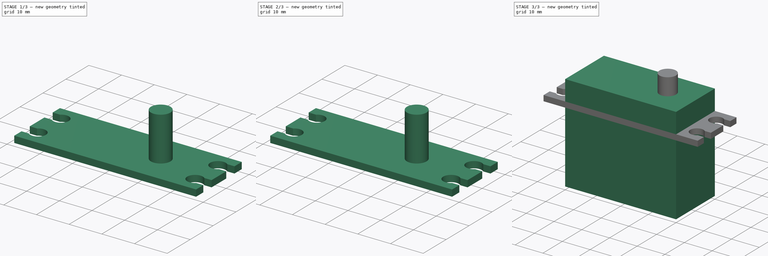
[diagram: build sequence overview — one tinted view per stage of 3, left to right]
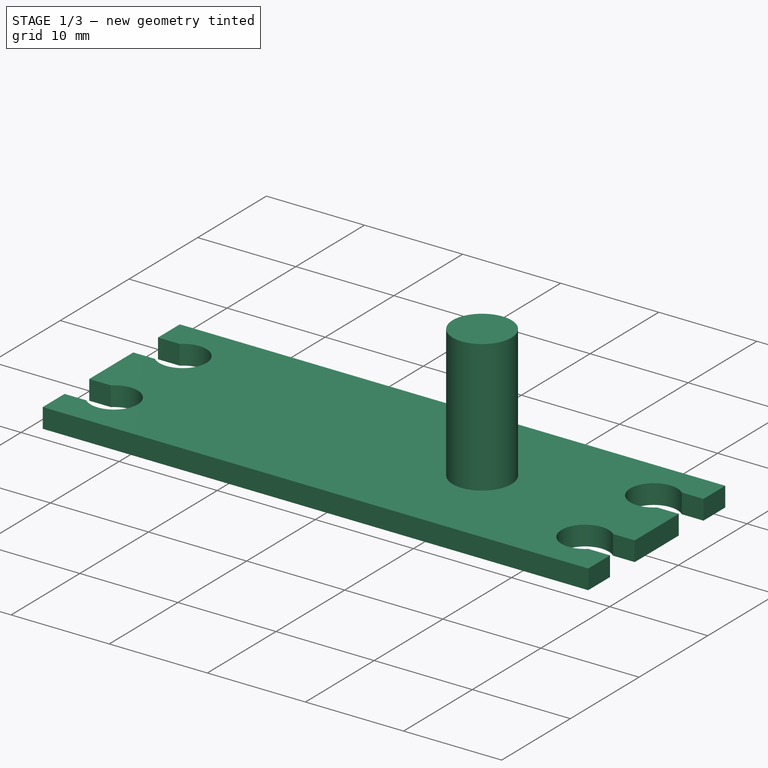
[diagram: stage 1 of 3 — iso view after this stage's code; geometry added in this stage tinted green]
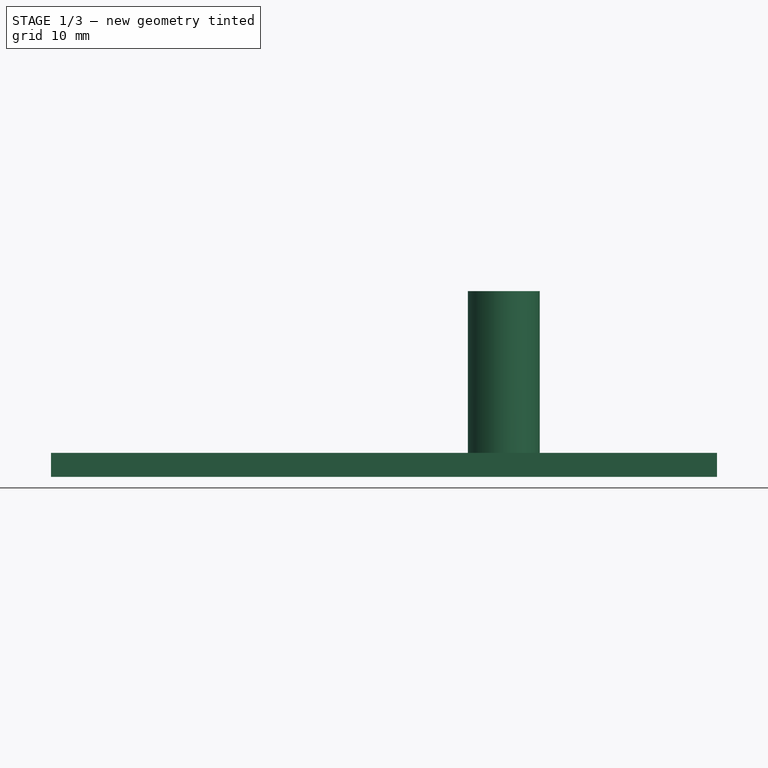
[diagram: stage 1 of 3 — front view after this stage's code; geometry added in this stage tinted green]
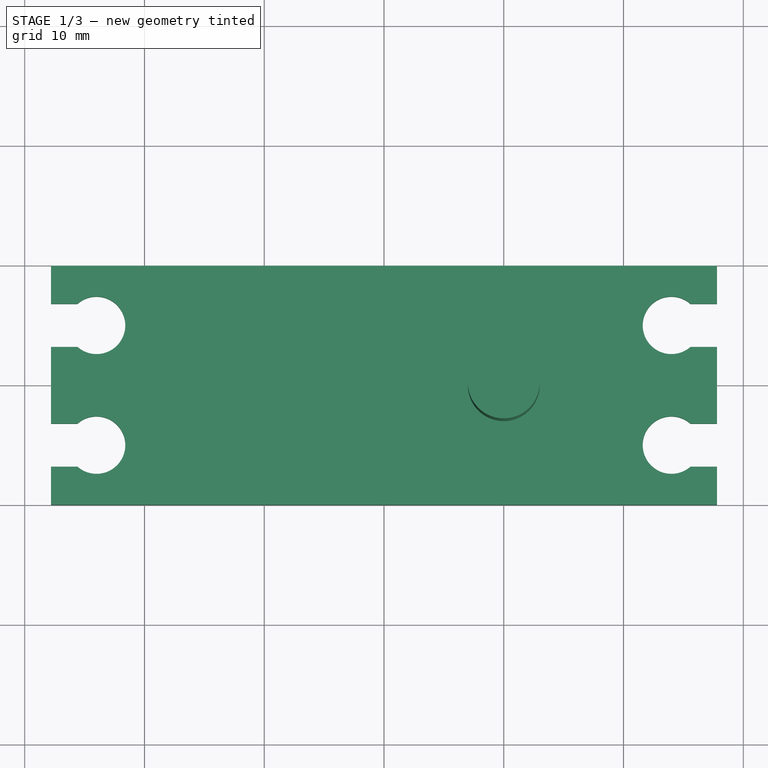
[diagram: stage 1 of 3 — top view after this stage's code; geometry added in this stage tinted green]
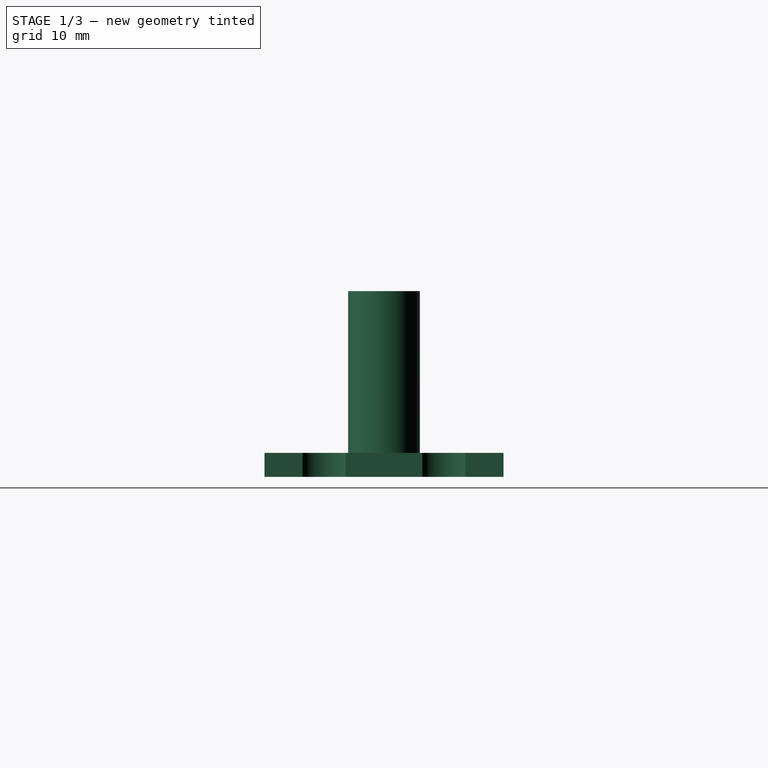
[diagram: stage 1 of 3 — right view after this stage's code; geometry added in this stage tinted green]
FCSTD DOCUMENT  (FreeCAD 0.14R3700 (Git))
Label: servo
License: CC-BY 3.0
LicenseURL: http://creativecommons.org/licenses/by/3.0/
objects: Sketcher::SketchObject×3, Part::Extrusion×3, Part::Fuse×2
note: 8 computed .brp shape members not serialized (recipe doc carries the construction recipe); baked Part::Feature solids carry a one-line shape summary decoded from their .brp

FEATURE [Part::Extrusion] Extrude002
  Base = -> Sketch
  Dir = (0,0,2)
  Solid = true
FEATURE [Sketcher::SketchObject] Sketch003
  sketch-geometry (1):
    g0: Circle CenterX=0 CenterY=0 CenterZ=0 NormalX=0 NormalY=0 NormalZ=1 Radius=3
  constraints (2):
    c: Coincident(g0,g-1)
    c: Radius(g0) = 3
FEATURE [Part::Extrusion] Extrude004
  Base = -> Sketch003
  Dir = (0,0,15.5)
  Solid = true
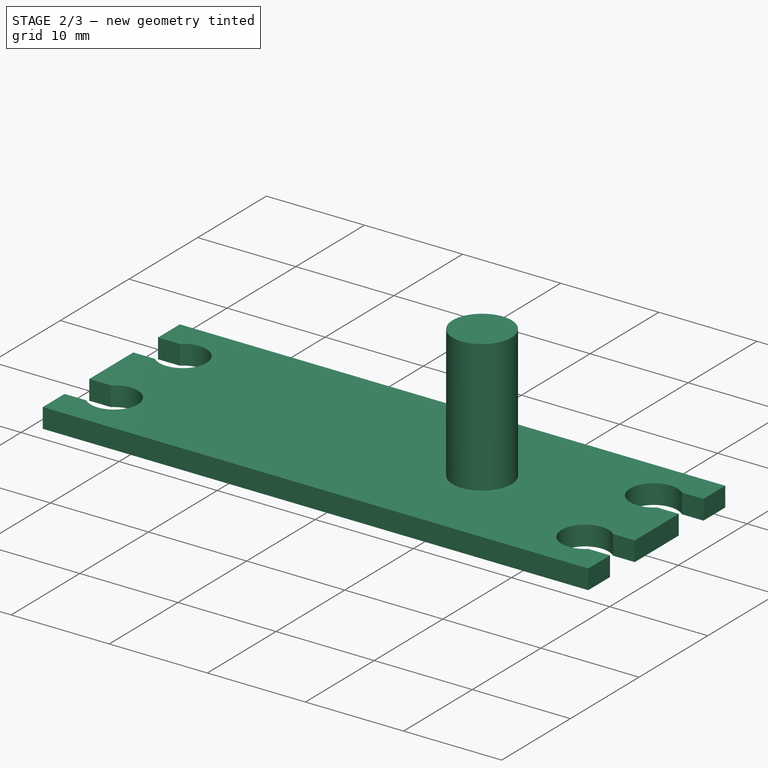
[diagram: stage 2 of 3 — iso view after this stage's code; geometry added in this stage tinted green]
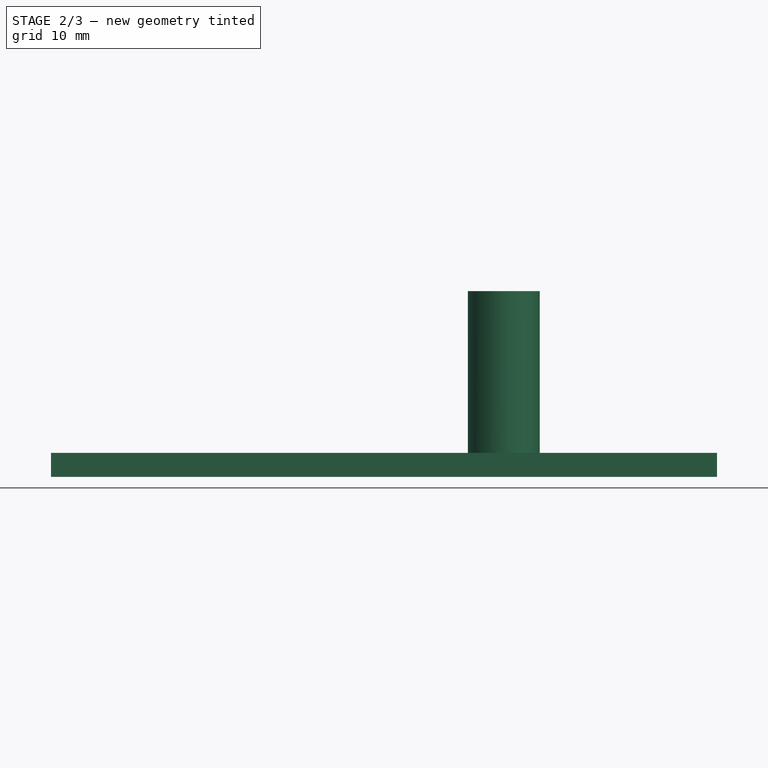
[diagram: stage 2 of 3 — front view after this stage's code; geometry added in this stage tinted green]
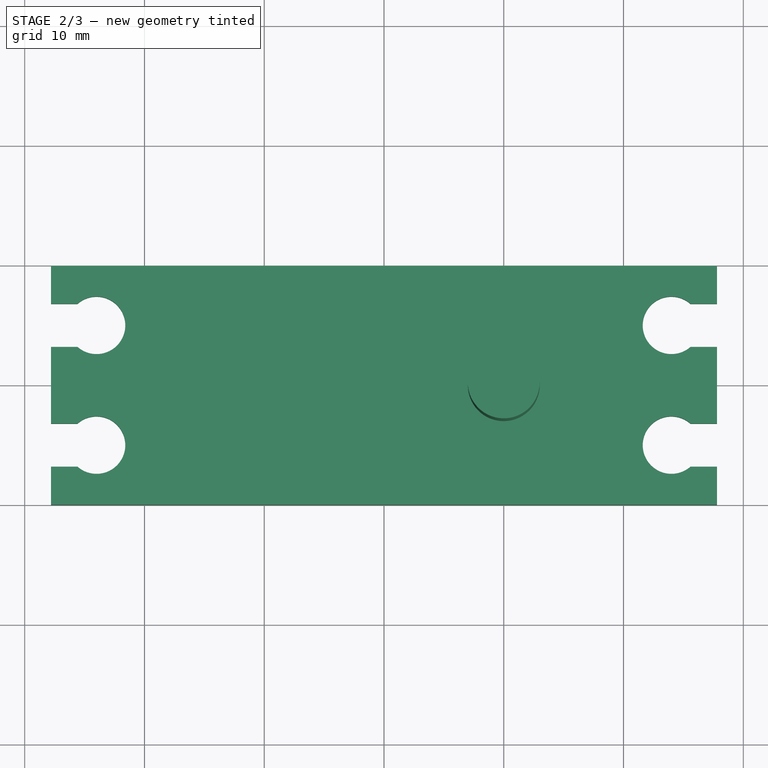
[diagram: stage 2 of 3 — top view after this stage's code; geometry added in this stage tinted green]
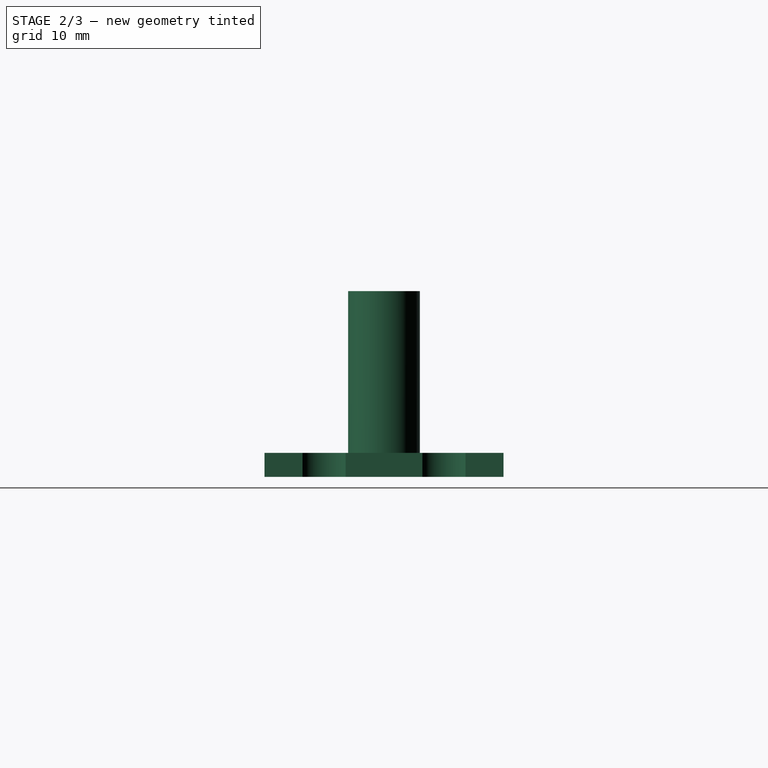
[diagram: stage 2 of 3 — right view after this stage's code; geometry added in this stage tinted green]
FEATURE [Part::Fuse] Fusion
  Base = -> Extrude002
  Tool = -> Extrude004
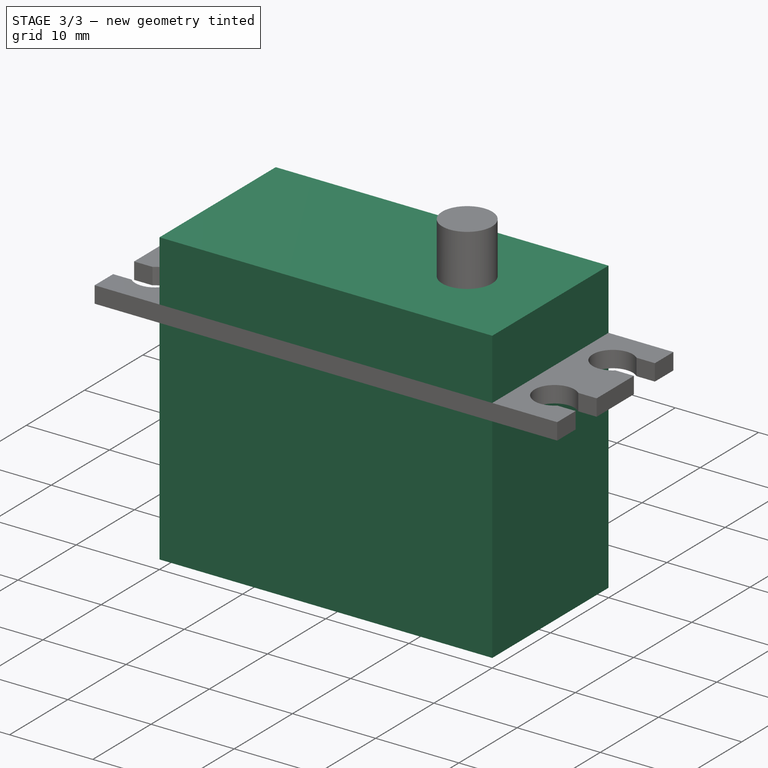
[diagram: stage 3 of 3 — iso view after this stage's code; geometry added in this stage tinted green]
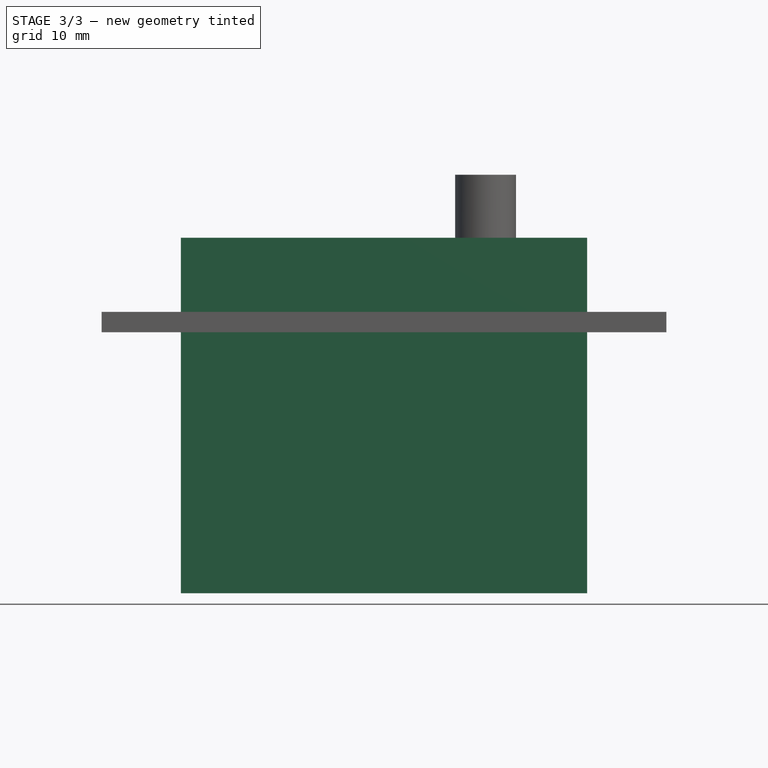
[diagram: stage 3 of 3 — front view after this stage's code; geometry added in this stage tinted green]
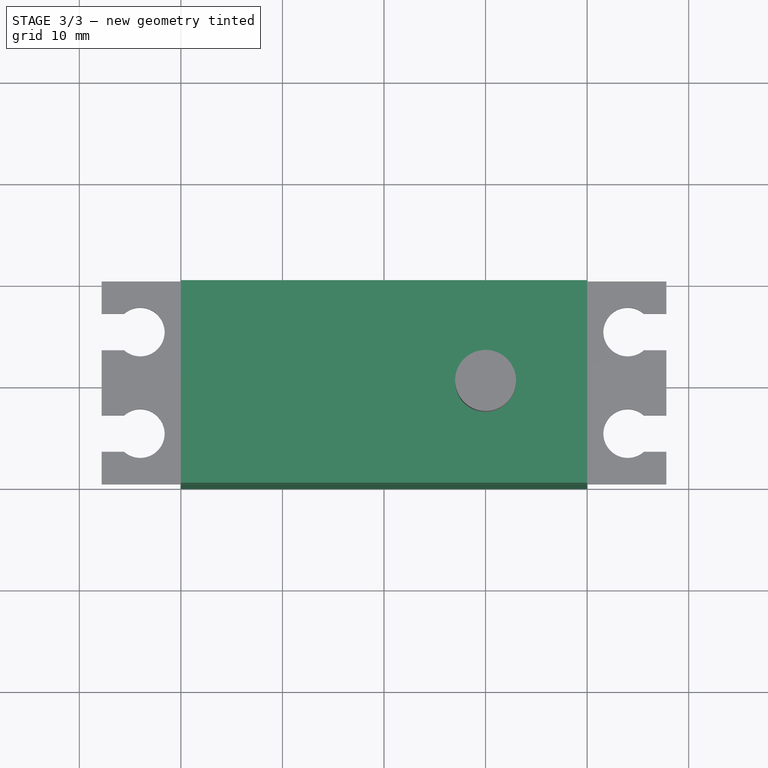
[diagram: stage 3 of 3 — top view after this stage's code; geometry added in this stage tinted green]
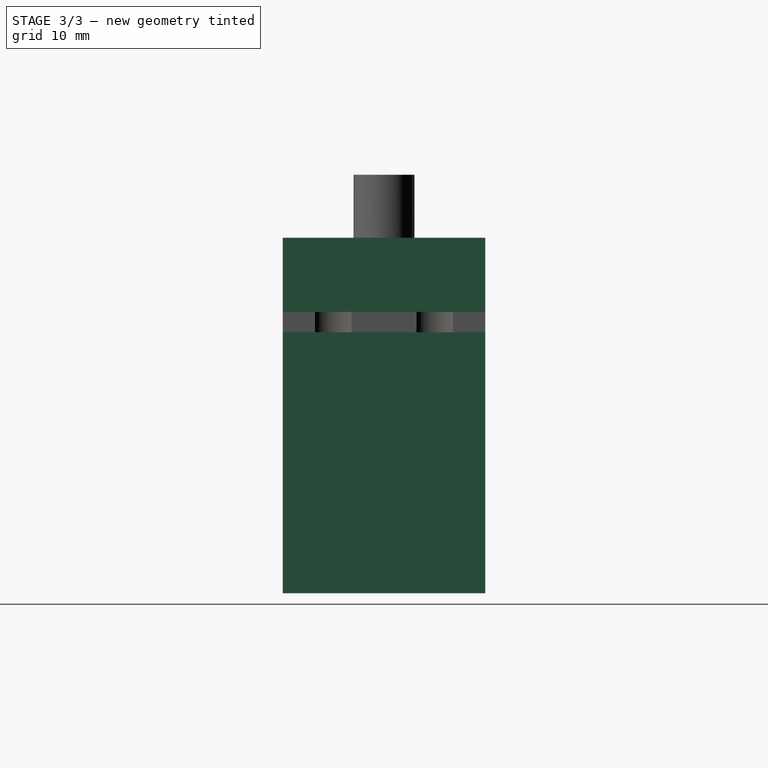
[diagram: stage 3 of 3 — right view after this stage's code; geometry added in this stage tinted green]
FEATURE [Sketcher::SketchObject] Sketch
  sketch-geometry (31):
    g0: LineSegment StartX=-37.8 StartY=9.975 StartZ=0 EndX=17.8 EndY=9.975 EndZ=0
    g1: LineSegment StartX=17.8 StartY=-9.975 StartZ=0 EndX=-37.8 EndY=-9.975 EndZ=0
    g2: LineSegment [constr] StartX=14 StartY=5 StartZ=0 EndX=14 EndY=-5 EndZ=0
    g3: LineSegment [constr] StartX=-34 StartY=-5 StartZ=0 EndX=-34 EndY=5 EndZ=0
    g4: LineSegment StartX=15.5875 StartY=-6.8 StartZ=0 EndX=17.8 EndY=-6.8 EndZ=0
    g5: ArcOfCircle CenterX=14 CenterY=-5 CenterZ=0 NormalX=0 NormalY=0 NormalZ=1 Radius=2.4 StartAngle=0.848062 EndAngle=5.43512
    g6: LineSegment StartX=15.5875 StartY=-3.2 StartZ=0 EndX=17.8 EndY=-3.2 EndZ=0
    g7: LineSegment [constr] StartX=-10 StartY=9.975 StartZ=0 EndX=-10 EndY=-9.975 EndZ=0
    g8: ArcOfCircle CenterX=-34 CenterY=-5 CenterZ=0 NormalX=0 NormalY=0 NormalZ=1 Radius=2.4 StartAngle=3.98965 EndAngle=8.57672
    g9: LineSegment StartX=17.8 StartY=-6.8 StartZ=0 EndX=17.8 EndY=-9.975 EndZ=0
    g10: ArcOfCircle CenterX=14 CenterY=5 CenterZ=0 NormalX=0 NormalY=0 NormalZ=1 Radius=2.4 StartAngle=0.848062 EndAngle=5.43512
    g11: LineSegment StartX=15.5875 StartY=3.2 StartZ=0 EndX=17.8 EndY=3.2 EndZ=0
    g12: LineSegment StartX=15.5875 StartY=6.8 StartZ=0 EndX=17.8 EndY=6.8 EndZ=0
    g13: LineSegment StartX=17.8 StartY=-3.2 StartZ=0 EndX=17.8 EndY=3.2 EndZ=0
    g14: LineSegment StartX=17.8 StartY=9.975 StartZ=0 EndX=17.8 EndY=6.8 EndZ=0
    g15: LineSegment [constr] StartX=17.8 StartY=-3.2 StartZ=0 EndX=17.8 EndY=-6.8 EndZ=0
    g16: LineSegment [constr] StartX=15.5875 StartY=-3.2 StartZ=0 EndX=15.5875 EndY=-6.8 EndZ=0
    g17: ArcOfCircle CenterX=-34 CenterY=5 CenterZ=0 NormalX=0 NormalY=0 NormalZ=1 Radius=2.4 StartAngle=3.98965 EndAngle=8.57672
    g18: LineSegment StartX=-37.8 StartY=9.975 StartZ=0 EndX=-37.8 EndY=6.8 EndZ=0
    g19: LineSegment StartX=-37.8 StartY=6.8 StartZ=0 EndX=-35.5875 EndY=6.8 EndZ=0
    g20: LineSegment StartX=-35.5875 StartY=3.2 StartZ=0 EndX=-37.8 EndY=3.2 EndZ=0
    g21: LineSegment StartX=-37.8 StartY=3.2 StartZ=0 EndX=-37.8 EndY=-3.2 EndZ=0
    g22: LineSegment StartX=-37.8 StartY=-3.2 StartZ=0 EndX=-35.5875 EndY=-3.2 EndZ=0
    g23: LineSegment StartX=-37.8 StartY=-9.975 StartZ=0 EndX=-37.8 EndY=-6.8 EndZ=0
    g24: LineSegment StartX=-37.8 StartY=-6.8 StartZ=0 EndX=-35.5875 EndY=-6.8 EndZ=0
    g25: LineSegment [constr] StartX=-37.8 StartY=-3.2 StartZ=0 EndX=-37.8 EndY=-6.8 EndZ=0
    g26: LineSegment [constr] StartX=-37.8 StartY=3.2 StartZ=0 EndX=-37.8 EndY=6.8 EndZ=0
    g27: LineSegment [constr] StartX=-31.6067 StartY=4.8208 StartZ=0 EndX=-31.6067 EndY=-4.8208 EndZ=0
    g28: LineSegment [constr] StartX=11.6 StartY=5.00188 StartZ=0 EndX=11.6 EndY=-5.00188 EndZ=0
    g29: LineSegment [constr] StartX=-30 StartY=9.975 StartZ=0 EndX=-30 EndY=-9.975 EndZ=0
    g30: LineSegment [constr] StartX=10 StartY=9.975 StartZ=0 EndX=10 EndY=-9.975 EndZ=0
  constraints (85):
    c: Horizontal(g0)
    c: Horizontal(g1)
    c: Vertical(g2)
    c: DistanceY(g2) = -10
    c: Distance(g0) = 55.6
    c: Symmetric(g1,g0,g-1)
    c: Vertical(g3)
    c: Horizontal(g4)
    c: Coincident(g5,g4)
    c: Coincident(g2,g5)
    c: Radius(g5) = 2.4
    c: Horizontal(g6)
    c: Coincident(g5,g6)
    c: DistanceY(g4,g5) = 3.6
    c: PointOnObject(g7,g0)
    c: PointOnObject(g7,g1)
    c: Vertical(g7)
    c: Symmetric(g1,g1,g7)
    c: Coincident(g3,g8)
    c: Coincident(g9,g4)
    c: Coincident(g9,g1)
    c: Coincident(g10,g2)
    c: Coincident(g11,g10)
    c: Horizontal(g11)
    c: Coincident(g12,g10)
    c: Horizontal(g12)
    c: Coincident(g13,g6)
    c: Coincident(g13,g11)
    c: Vertical(g13)
    c: Coincident(g14,g0)
    c: Coincident(g14,g12)
    c: Vertical(g14)
    c: Symmetric(g5,g10,g-1)
    c: Vertical(g9)
    c: Symmetric(g4,g10,g-1)
    c: Coincident(g15,g6)
    c: Coincident(g15,g4)
    c: Vertical(g15)
    c: Coincident(g16,g5)
    c: Coincident(g16,g4)
    c: Vertical(g16)
    c: Radius(g8) = 2.4
    c: Coincident(g17,g3)
    c: DistanceX(g3,g2) = 48
    c: Coincident(g0,g18)
    c: Vertical(g18)
    c: Coincident(g18,g19)
    c: Horizontal(g19)
    c: Coincident(g19,g17)
    c: Coincident(g20,g21)
    c: Coincident(g20,g17)
    c: Horizontal(g20)
    c: Coincident(g22,g21)
    c: Coincident(g22,g8)
    c: Horizontal(g22)
    c: Coincident(g1,g23)
    c: Vertical(g23)
    c: Coincident(g23,g24)
    c: Coincident(g24,g8)
    c: Horizontal(g24)
    c: Vertical(g21)
    c: Symmetric(g17,g10,g7)
    c: Symmetric(g17,g10,g7)
    c: Symmetric(g8,g5,g7)
    c: Symmetric(g8,g4,g7)
    c: Coincident(g25,g21)
    c: Vertical(g25)
    c: Coincident(g23,g25)
    c: Coincident(g26,g20)
    c: Coincident(g26,g18)
    c: Vertical(g26)
    c: DistanceY(g0,g1) = -19.95
    c: PointOnObject(g27,g17)
    c: PointOnObject(g27,g8)
    c: Vertical(g27)
    c: PointOnObject(g28,g10)
    c: PointOnObject(g28,g5)
    c: Vertical(g28)
    c: Distance(g27,g28) = 43.2067
    c: PointOnObject(g29,g0)
    c: PointOnObject(g29,g1)
    c: Vertical(g29)
    c: PointOnObject(g30,g0)
    c: PointOnObject(g30,g1)
    c: Vertical(g30)
FEATURE [Sketcher::SketchObject] Sketch001
  Placement = pos=(0,0,9.3) rot=(0,0,1;0rad)
  sketch-geometry (4):
    g0: LineSegment StartX=-30 StartY=9.975 StartZ=0 EndX=10 EndY=9.975 EndZ=0
    g1: LineSegment StartX=10 StartY=9.975 StartZ=0 EndX=10 EndY=-9.975 EndZ=0
    g2: LineSegment StartX=10 StartY=-9.975 StartZ=0 EndX=-30 EndY=-9.975 EndZ=0
    g3: LineSegment StartX=-30 StartY=-9.975 StartZ=0 EndX=-30 EndY=9.975 EndZ=0
  constraints (12):
    c: Coincident(g0,g1)
    c: Coincident(g1,g2)
    c: Coincident(g2,g3)
    c: Coincident(g3,g0)
    c: Horizontal(g0)
    c: Horizontal(g2)
    c: Vertical(g1)
    c: Vertical(g3)
    c: Distance(g1) = 19.95
    c: Symmetric(g1,g0,g-1)
    c: Distance(g-1,g1) = 10
    c: Distance(g0) = 40
FEATURE [Part::Extrusion] Extrude001
  Base = -> Sketch001
  Dir = (0,0,-35)
  Solid = true
FEATURE [Part::Fuse] Fusion001
  Base = -> Extrude001
  Tool = -> Fusion
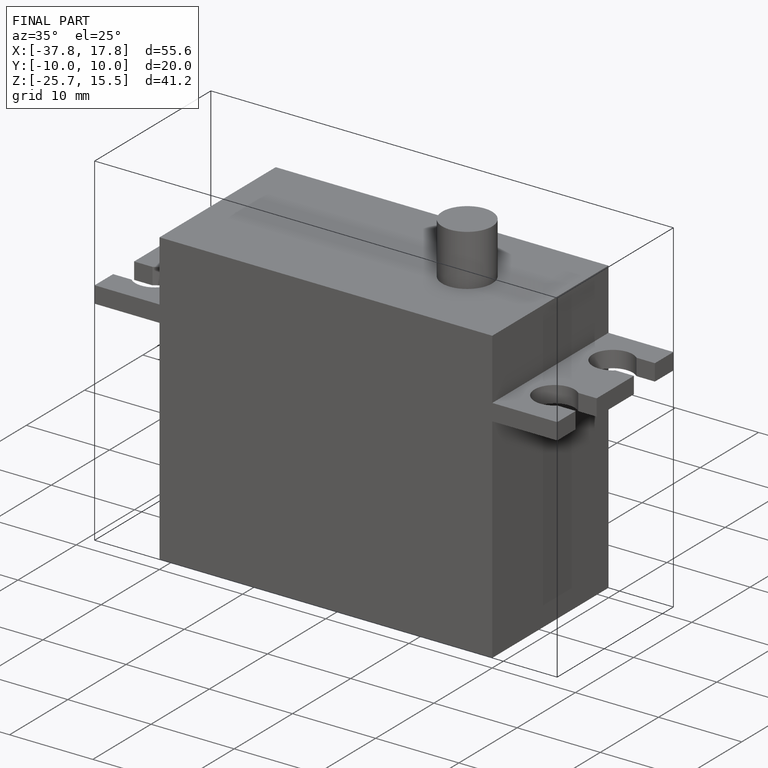
[diagram: finished part — iso view with bounding-box wireframe]
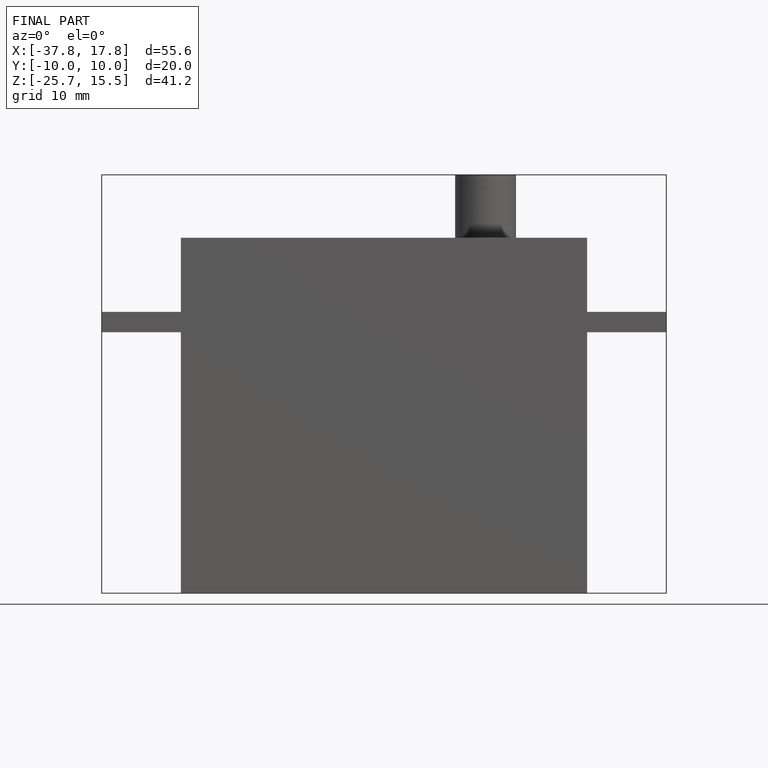
[diagram: finished part — front view with bounding-box wireframe]
